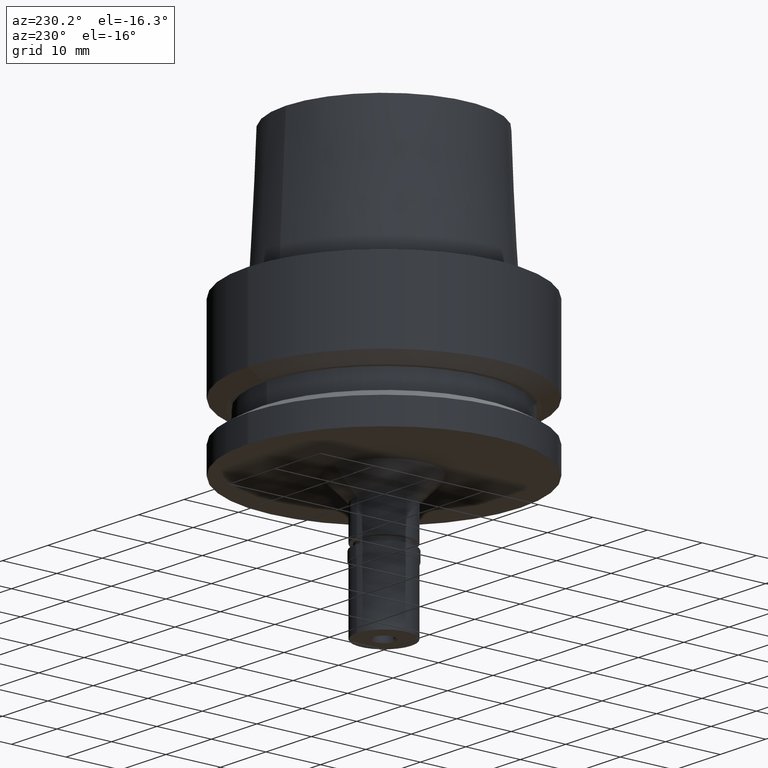
[diagram: clean part render]
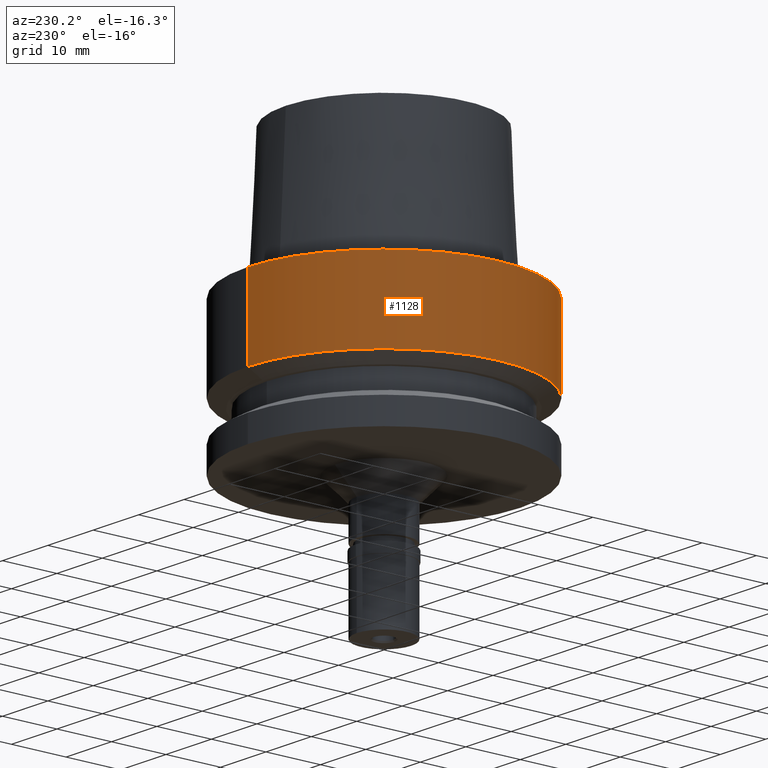
[diagram: same view with one face highlighted and labeled with its STEP entity id]
A machine part, auxiliary view. The second image highlights one B-rep face of the part: STEP entity #1128.
In plain terms, the highlighted cylindrical surface (partial cylindrical patch) has radius 25 mm, axis along (0, 0, 1).
Its self-contained STEP definition (entity closure, byte-faithful):
#44 = EDGE_CURVE ( 'NONE', #1901, #656, #366, .T. ) ;
#148 = AXIS2_PLACEMENT_3D ( 'NONE', #1163, #933, #1610 ) ;
#240 = ORIENTED_EDGE ( 'NONE', *, *, #1050, .F. ) ;
#243 = VECTOR ( 'NONE', #2064, 1000.000000000000000 ) ;
#250 = VERTEX_POINT ( 'NONE', #1828 ) ;
#277 = CARTESIAN_POINT ( 'NONE',  ( 0.0000000000000000000, -25.00000000000000000, -3.315866100213999871E-14 ) ) ;
#366 = LINE ( 'NONE', #811, #243 ) ;
#387 = VERTEX_POINT ( 'NONE', #2348 ) ;
#656 = VERTEX_POINT ( 'NONE', #1925 ) ;
#696 = CIRCLE ( 'NONE', #148, 25.00000000000000000 ) ;
#724 = FACE_OUTER_BOUND ( 'NONE', #2196, .T. ) ;
#811 = CARTESIAN_POINT ( 'NONE',  ( 0.0000000000000000000, 25.00000000000000000, -3.315866100213999871E-14 ) ) ;
#886 = DIRECTION ( 'NONE',  ( 0.0000000000000000000, 0.0000000000000000000, 1.000000000000000000 ) ) ;
#910 = AXIS2_PLACEMENT_3D ( 'NONE', #1722, #886, #1493 ) ;
#918 = EDGE_CURVE ( 'NONE', #656, #250, #2090, .T. ) ;
#933 = DIRECTION ( 'NONE',  ( 0.0000000000000000000, 0.0000000000000000000, -1.000000000000000000 ) ) ;
#1050 = EDGE_CURVE ( 'NONE', #387, #250, #2514, .T. ) ;
#1108 = DIRECTION ( 'NONE',  ( 0.0000000000000000000, 0.0000000000000000000, -1.000000000000000000 ) ) ;
#1128 = ADVANCED_FACE ( 'NONE', ( #724 ), #1346, .T. ) ;
#1163 = CARTESIAN_POINT ( 'NONE',  ( 0.0000000000000000000, 0.0000000000000000000, -1.421085471519999843E-14 ) ) ;
#1188 = AXIS2_PLACEMENT_3D ( 'NONE', #2593, #2621, #2175 ) ;
#1346 = CYLINDRICAL_SURFACE ( 'NONE', #1188, 25.00000000000000000 ) ;
#1493 = DIRECTION ( 'NONE',  ( 0.0000000000000000000, 1.000000000000000000, 0.0000000000000000000 ) ) ;
#1500 = ORIENTED_EDGE ( 'NONE', *, *, #44, .T. ) ;
#1610 = DIRECTION ( 'NONE',  ( 0.0000000000000000000, -1.000000000000000000, 0.0000000000000000000 ) ) ;
#1642 = EDGE_CURVE ( 'NONE', #387, #1901, #696, .T. ) ;
#1722 = CARTESIAN_POINT ( 'NONE',  ( 0.0000000000000000000, 0.0000000000000000000, -14.61835441913999922 ) ) ;
#1793 = VECTOR ( 'NONE', #1108, 1000.000000000000000 ) ;
#1828 = CARTESIAN_POINT ( 'NONE',  ( 0.0000000000000000000, -25.00000000000000000, -14.61835441913999922 ) ) ;
#1854 = CARTESIAN_POINT ( 'NONE',  ( 0.0000000000000000000, 25.00000000000000000, -1.421085471519999843E-14 ) ) ;
#1901 = VERTEX_POINT ( 'NONE', #1854 ) ;
#1925 = CARTESIAN_POINT ( 'NONE',  ( 0.0000000000000000000, 25.00000000000000000, -14.61835441913999922 ) ) ;
#1991 = ORIENTED_EDGE ( 'NONE', *, *, #918, .T. ) ;
#2064 = DIRECTION ( 'NONE',  ( 0.0000000000000000000, 0.0000000000000000000, -1.000000000000000000 ) ) ;
#2090 = CIRCLE ( 'NONE', #910, 25.00000000000000000 ) ;
#2175 = DIRECTION ( 'NONE',  ( 0.0000000000000000000, 1.000000000000000000, 0.0000000000000000000 ) ) ;
#2196 = EDGE_LOOP ( 'NONE', ( #1991, #240, #2467, #1500 ) ) ;
#2348 = CARTESIAN_POINT ( 'NONE',  ( 0.0000000000000000000, -25.00000000000000000, -1.421085471519999843E-14 ) ) ;
#2467 = ORIENTED_EDGE ( 'NONE', *, *, #1642, .T. ) ;
#2514 = LINE ( 'NONE', #277, #1793 ) ;
#2593 = CARTESIAN_POINT ( 'NONE',  ( 0.0000000000000000000, 0.0000000000000000000, -49.86500000000000199 ) ) ;
#2621 = DIRECTION ( 'NONE',  ( 0.0000000000000000000, 0.0000000000000000000, 1.000000000000000000 ) ) ;